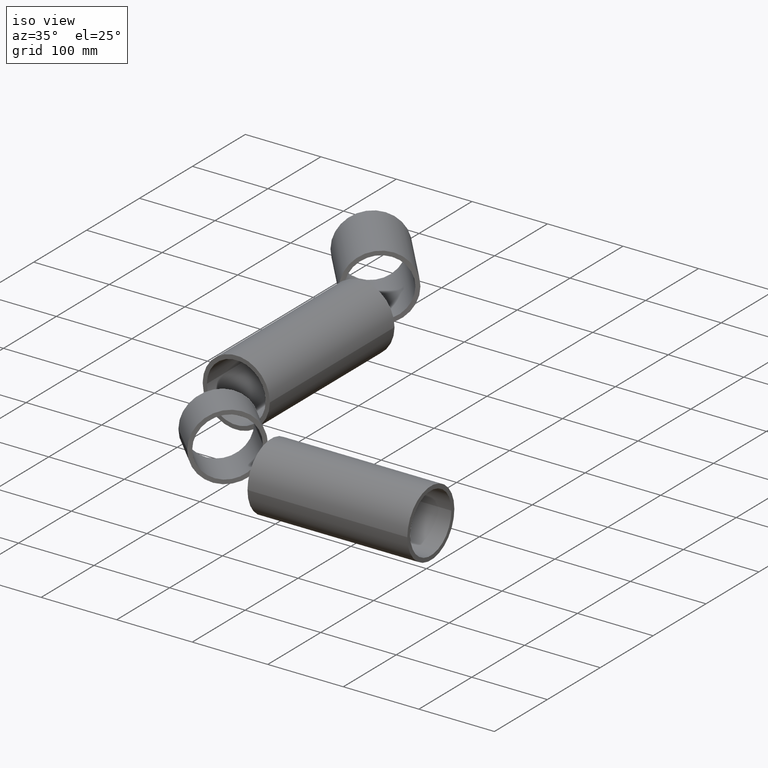
[diagram: clean part render]
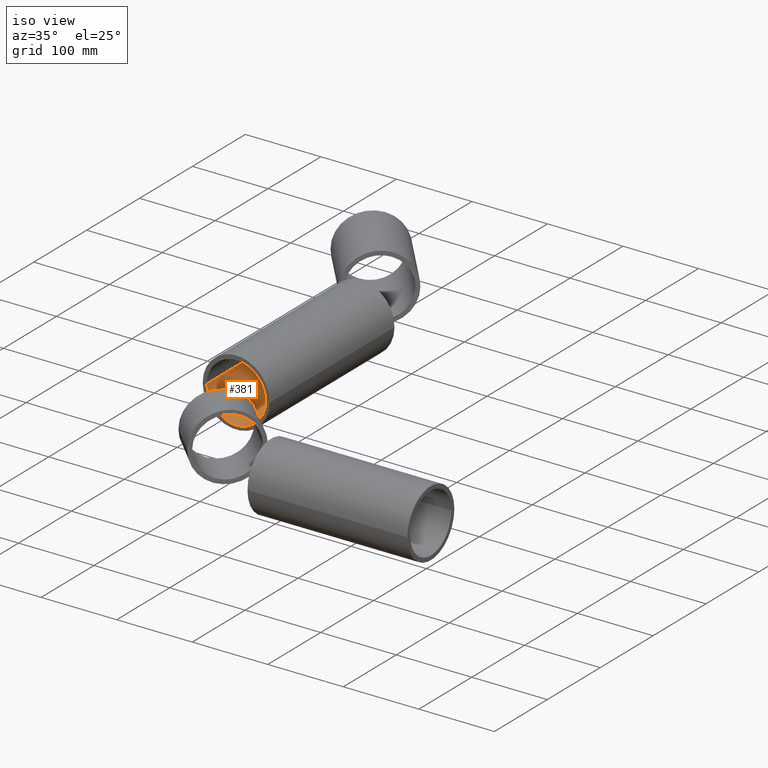
[diagram: same view with one face highlighted and labeled with its STEP entity id]
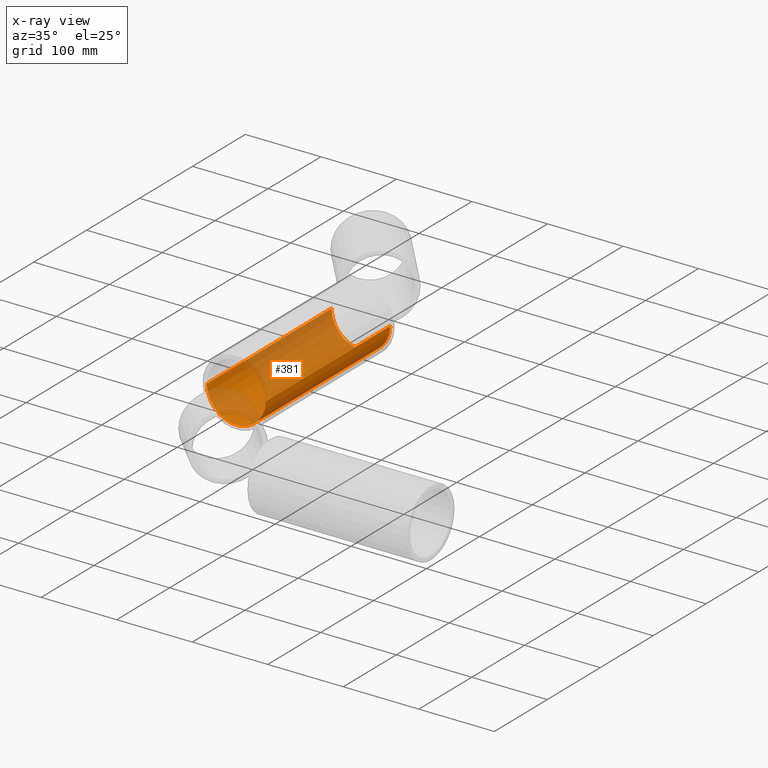
[diagram: x-ray of the same camera — body ghosted, the highlighted face saturated]
A machine part, iso view. The second image highlights one B-rep face of the part: STEP entity #381.
The next image is the same camera in x-ray: the body ghosted, the highlighted face saturated — about 61% of this face is hidden behind the body in this view.
In plain terms, the highlighted cylindrical surface (edge-blend (fillet) strip) has radius 38.95 mm, axis along (-0, -1, -0).
Its self-contained STEP definition (entity closure, byte-faithful):
#16 = DIRECTION ( 'NONE',  ( 2.220446049250312588E-16, 1.000000000000000000, 0.000000000000000000 ) ) ;
#21 = CYLINDRICAL_SURFACE ( 'NONE', #320, 38.95000000000003837 ) ;
#22 = CARTESIAN_POINT ( 'NONE',  ( -298.1454364826298047, 153.3908729652592058, 4.769999282678941594E-15 ) ) ;
#30 = CARTESIAN_POINT ( 'NONE',  ( -298.1454364826297478, 389.1500489170994115, 4.769999282678941594E-15 ) ) ;
#45 = CARTESIAN_POINT ( 'NONE',  ( -298.1454364826297478, 389.1500489170994115, 4.769999282678943171E-15 ) ) ;
#60 = LINE ( 'NONE', #45, #497 ) ;
#105 = CIRCLE ( 'NONE', #733, 38.95000000000003837 ) ;
#108 = ORIENTED_EDGE ( 'NONE', *, *, #689, .T. ) ;
#135 = FACE_OUTER_BOUND ( 'NONE', #639, .T. ) ;
#157 = CARTESIAN_POINT ( 'NONE',  ( -220.2454364826296853, 389.1500489170994115, 0.000000000000000000 ) ) ;
#162 = DIRECTION ( 'NONE',  ( -1.000000000000000000, 0.000000000000000000, 0.000000000000000000 ) ) ;
#167 = CIRCLE ( 'NONE', #498, 38.95000000000003837 ) ;
#220 = VERTEX_POINT ( 'NONE', #22 ) ;
#226 = DIRECTION ( 'NONE',  ( -2.354570124668123057E-16, -1.000000000000000000, -0.000000000000000000 ) ) ;
#233 = EDGE_CURVE ( 'NONE', #554, #630, #333, .T. ) ;
#288 = ORIENTED_EDGE ( 'NONE', *, *, #233, .F. ) ;
#320 = AXIS2_PLACEMENT_3D ( 'NONE', #421, #476, #372 ) ;
#324 = DIRECTION ( 'NONE',  ( -2.354570124668123057E-16, -1.000000000000000000, -0.000000000000000000 ) ) ;
#333 = LINE ( 'NONE', #386, #589 ) ;
#337 = ORIENTED_EDGE ( 'NONE', *, *, #479, .T. ) ;
#372 = DIRECTION ( 'NONE',  ( 1.000000000000000000, 0.000000000000000000, 0.000000000000000000 ) ) ;
#381 = ADVANCED_FACE ( 'NONE', ( #135 ), #21, .F. ) ;
#386 = CARTESIAN_POINT ( 'NONE',  ( -220.2454364826296853, 389.1500489170994115, 0.000000000000000000 ) ) ;
#390 = VERTEX_POINT ( 'NONE', #30 ) ;
#407 = CARTESIAN_POINT ( 'NONE',  ( -259.1954364826297024, 389.1500489170994115, 0.000000000000000000 ) ) ;
#421 = CARTESIAN_POINT ( 'NONE',  ( -259.1954364826297024, 389.1500489170994115, 0.000000000000000000 ) ) ;
#441 = DIRECTION ( 'NONE',  ( 2.220446049250312588E-16, 1.000000000000000000, 0.000000000000000000 ) ) ;
#476 = DIRECTION ( 'NONE',  ( -2.354570124668123057E-16, -1.000000000000000000, -0.000000000000000000 ) ) ;
#479 = EDGE_CURVE ( 'NONE', #390, #220, #60, .T. ) ;
#497 = VECTOR ( 'NONE', #324, 1000.000000000000000 ) ;
#498 = AXIS2_PLACEMENT_3D ( 'NONE', #407, #16, #699 ) ;
#554 = VERTEX_POINT ( 'NONE', #157 ) ;
#566 = EDGE_CURVE ( 'NONE', #630, #220, #105, .T. ) ;
#580 = ORIENTED_EDGE ( 'NONE', *, *, #566, .F. ) ;
#582 = CARTESIAN_POINT ( 'NONE',  ( -220.2454364826297422, 153.3908729652592058, 0.000000000000000000 ) ) ;
#589 = VECTOR ( 'NONE', #226, 1000.000000000000000 ) ;
#630 = VERTEX_POINT ( 'NONE', #582 ) ;
#639 = EDGE_LOOP ( 'NONE', ( #108, #337, #580, #288 ) ) ;
#689 = EDGE_CURVE ( 'NONE', #554, #390, #167, .T. ) ;
#699 = DIRECTION ( 'NONE',  ( -1.000000000000000000, 0.000000000000000000, 0.000000000000000000 ) ) ;
#726 = CARTESIAN_POINT ( 'NONE',  ( -259.1954364826297592, 153.3908729652592058, 0.000000000000000000 ) ) ;
#733 = AXIS2_PLACEMENT_3D ( 'NONE', #726, #441, #162 ) ;